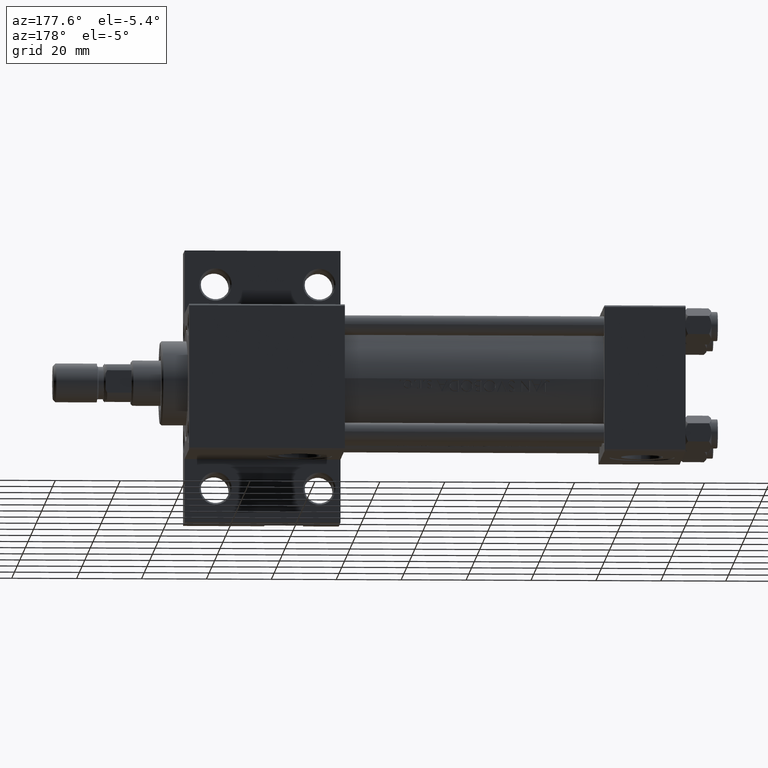
[diagram: clean part render]
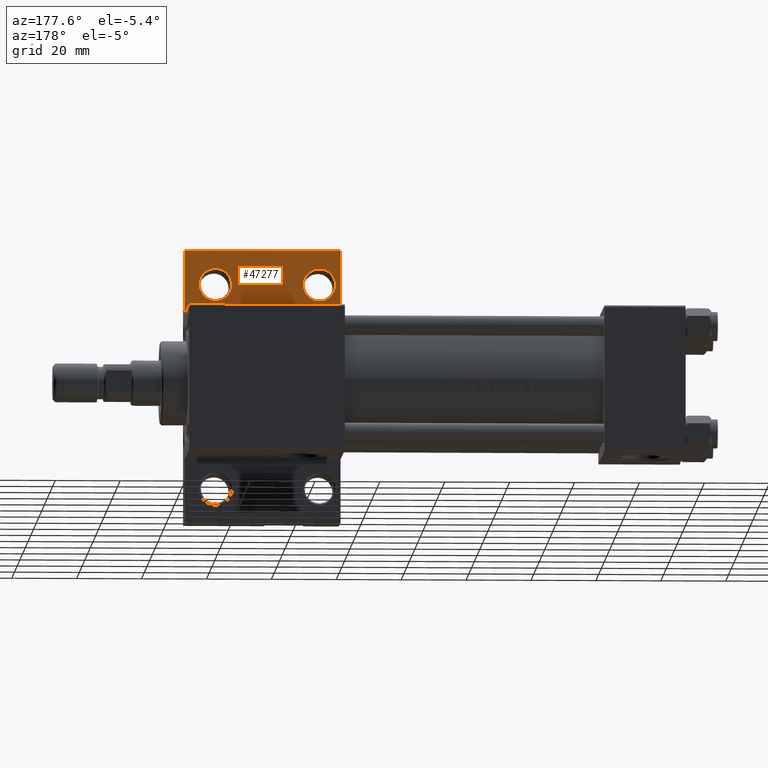
[diagram: same view with one face highlighted and labeled with its STEP entity id]
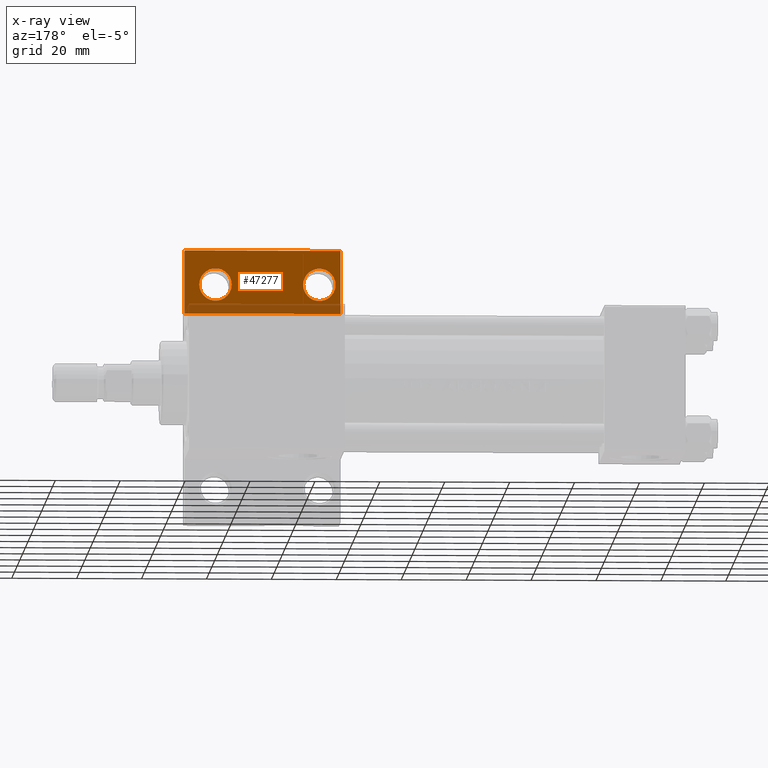
[diagram: x-ray of the same camera — body ghosted, the highlighted face saturated]
A machine part, auxiliary view. The second image highlights one B-rep face of the part: STEP entity #47277.
The next image is the same camera in x-ray: the body ghosted, the highlighted face saturated — about 18% of this face is hidden behind the body in this view.
In plain terms, the highlighted planar face has unit normal (0, -1, 0).
Its self-contained STEP definition (entity closure, byte-faithful):
#296 = CARTESIAN_POINT ( 'NONE',  ( 105.0000000000000000, -42.00000000000000711, -9.999999999999998224 ) ) ;
#1025 = DIRECTION ( 'NONE',  ( 0.000000000000000000, 0.000000000000000000, -1.000000000000000000 ) ) ;
#1309 = EDGE_CURVE ( 'NONE', #24302, #21010, #2443, .T. ) ;
#1635 = EDGE_LOOP ( 'NONE', ( #8759, #8539 ) ) ;
#1659 = AXIS2_PLACEMENT_3D ( 'NONE', #31442, #5617, #12919 ) ;
#2443 = CIRCLE ( 'NONE', #43673, 4.999500000000100641 ) ;
#2996 = EDGE_CURVE ( 'NONE', #17941, #15058, #9762, .T. ) ;
#3899 = CARTESIAN_POINT ( 'NONE',  ( 111.5000000000000142, -31.50000000000000000, -9.999999999999998224 ) ) ;
#3939 = DIRECTION ( 'NONE',  ( 1.000000000000000000, -1.445602896647340396E-16, 0.000000000000000000 ) ) ;
#4228 = DIRECTION ( 'NONE',  ( -1.000000000000000000, 0.000000000000000000, 0.000000000000000000 ) ) ;
#4374 = DIRECTION ( 'NONE',  ( -1.000000000000000000, 0.000000000000000000, 0.000000000000000000 ) ) ;
#5101 = ORIENTED_EDGE ( 'NONE', *, *, #2996, .T. ) ;
#5617 = DIRECTION ( 'NONE',  ( 0.000000000000000000, 0.000000000000000000, -1.000000000000000000 ) ) ;
#6712 = CARTESIAN_POINT ( 'NONE',  ( 105.0000000000000142, -22.50000000000000000, -9.999999999999998224 ) ) ;
#7805 = DIRECTION ( 'NONE',  ( 0.000000000000000000, 0.000000000000000000, -1.000000000000000000 ) ) ;
#7853 = CARTESIAN_POINT ( 'NONE',  ( 143.5000000000000284, -31.50000000000000000, -9.999999999999998224 ) ) ;
#8304 = AXIS2_PLACEMENT_3D ( 'NONE', #14642, #24884, #10735 ) ;
#8539 = ORIENTED_EDGE ( 'NONE', *, *, #33245, .T. ) ;
#8759 = ORIENTED_EDGE ( 'NONE', *, *, #1309, .T. ) ;
#9762 = CIRCLE ( 'NONE', #8304, 4.999500000000045574 ) ;
#10169 = VECTOR ( 'NONE', #21987, 1000.000000000000000 ) ;
#10735 = DIRECTION ( 'NONE',  ( -1.000000000000000000, 0.000000000000000000, 0.000000000000000000 ) ) ;
#12306 = VECTOR ( 'NONE', #15157, 1000.000000000000000 ) ;
#12833 = CARTESIAN_POINT ( 'NONE',  ( 105.0000000000000000, -42.00000000000000711, -9.999999999999998224 ) ) ;
#12919 = DIRECTION ( 'NONE',  ( -1.000000000000000000, 0.000000000000000000, -0.000000000000000000 ) ) ;
#13099 = LINE ( 'NONE', #296, #12306 ) ;
#13403 = VECTOR ( 'NONE', #3939, 1000.000000000000000 ) ;
#13455 = ORIENTED_EDGE ( 'NONE', *, *, #24079, .F. ) ;
#14642 = CARTESIAN_POINT ( 'NONE',  ( 143.5000000000000284, -31.50000000000000000, -9.999999999999998224 ) ) ;
#15058 = VERTEX_POINT ( 'NONE', #47141 ) ;
#15157 = DIRECTION ( 'NONE',  ( -1.000000000000000000, -0.000000000000000000, -0.000000000000000000 ) ) ;
#15561 = AXIS2_PLACEMENT_3D ( 'NONE', #7853, #1025, #15887 ) ;
#15887 = DIRECTION ( 'NONE',  ( -1.000000000000000000, 0.000000000000000000, 0.000000000000000000 ) ) ;
#16388 = CARTESIAN_POINT ( 'NONE',  ( 111.5000000000000142, -31.50000000000000000, -9.999999999999998224 ) ) ;
#16584 = FACE_BOUND ( 'NONE', #31660, .T. ) ;
#17092 = ORIENTED_EDGE ( 'NONE', *, *, #39612, .F. ) ;
#17941 = VERTEX_POINT ( 'NONE', #26327 ) ;
#18828 = VERTEX_POINT ( 'NONE', #19801 ) ;
#19800 = DIRECTION ( 'NONE',  ( 0.000000000000000000, 0.000000000000000000, -1.000000000000000000 ) ) ;
#19801 = CARTESIAN_POINT ( 'NONE',  ( 105.0000000000000000, -42.00000000000000711, -9.999999999999998224 ) ) ;
#19936 = EDGE_CURVE ( 'NONE', #40709, #43490, #39526, .T. ) ;
#21010 = VERTEX_POINT ( 'NONE', #41427 ) ;
#21529 = CIRCLE ( 'NONE', #47999, 4.999500000000100641 ) ;
#21987 = DIRECTION ( 'NONE',  ( -0.000000000000000000, -1.000000000000000000, -0.000000000000000000 ) ) ;
#22361 = ORIENTED_EDGE ( 'NONE', *, *, #19936, .F. ) ;
#22910 = EDGE_CURVE ( 'NONE', #26997, #40709, #29270, .T. ) ;
#23246 = CARTESIAN_POINT ( 'NONE',  ( 152.9999999999999716, -42.00000000000000711, -9.999999999999998224 ) ) ;
#23993 = CARTESIAN_POINT ( 'NONE',  ( 116.4995000000001113, -31.50000000000000000, -9.999999999999998224 ) ) ;
#24079 = EDGE_CURVE ( 'NONE', #18828, #26997, #46210, .T. ) ;
#24302 = VERTEX_POINT ( 'NONE', #23993 ) ;
#24389 = PLANE ( 'NONE',  #1659 ) ;
#24884 = DIRECTION ( 'NONE',  ( 0.000000000000000000, 0.000000000000000000, -1.000000000000000000 ) ) ;
#25287 = ORIENTED_EDGE ( 'NONE', *, *, #22910, .F. ) ;
#25669 = CIRCLE ( 'NONE', #15561, 4.999500000000045574 ) ;
#26327 = CARTESIAN_POINT ( 'NONE',  ( 148.4995000000000687, -31.50000000000000000, -9.999999999999998224 ) ) ;
#26997 = VERTEX_POINT ( 'NONE', #6712 ) ;
#27686 = DIRECTION ( 'NONE',  ( 7.116814260417666541E-16, 1.000000000000000000, 0.000000000000000000 ) ) ;
#29270 = LINE ( 'NONE', #44132, #13403 ) ;
#29794 = EDGE_LOOP ( 'NONE', ( #22361, #25287, #13455, #17092 ) ) ;
#31442 = CARTESIAN_POINT ( 'NONE',  ( 0.000000000000000000, 0.000000000000000000, -9.999999999999998224 ) ) ;
#31660 = EDGE_LOOP ( 'NONE', ( #5101, #47302 ) ) ;
#33245 = EDGE_CURVE ( 'NONE', #21010, #24302, #21529, .T. ) ;
#33513 = CARTESIAN_POINT ( 'NONE',  ( 153.0000000000000284, -22.49999999999999645, -9.999999999999980460 ) ) ;
#38993 = FACE_OUTER_BOUND ( 'NONE', #29794, .T. ) ;
#39526 = LINE ( 'NONE', #43655, #10169 ) ;
#39612 = EDGE_CURVE ( 'NONE', #43490, #18828, #13099, .T. ) ;
#40666 = VECTOR ( 'NONE', #27686, 1000.000000000000000 ) ;
#40709 = VERTEX_POINT ( 'NONE', #33513 ) ;
#41427 = CARTESIAN_POINT ( 'NONE',  ( 106.5004999999999171, -31.50000000000000000, -9.999999999999998224 ) ) ;
#43490 = VERTEX_POINT ( 'NONE', #23246 ) ;
#43655 = CARTESIAN_POINT ( 'NONE',  ( 152.9999999999999716, -42.00000000000000711, -9.999999999999998224 ) ) ;
#43673 = AXIS2_PLACEMENT_3D ( 'NONE', #3899, #7805, #4374 ) ;
#43752 = EDGE_CURVE ( 'NONE', #15058, #17941, #25669, .T. ) ;
#44132 = CARTESIAN_POINT ( 'NONE',  ( 105.0000000000000142, -22.50000000000000000, -9.999999999999998224 ) ) ;
#45173 = FACE_BOUND ( 'NONE', #1635, .T. ) ;
#46210 = LINE ( 'NONE', #12833, #40666 ) ;
#47141 = CARTESIAN_POINT ( 'NONE',  ( 138.5004999999999598, -31.50000000000000000, -9.999999999999998224 ) ) ;
#47277 = ADVANCED_FACE ( 'NONE', ( #16584, #45173, #38993 ), #24389, .F. ) ;
#47302 = ORIENTED_EDGE ( 'NONE', *, *, #43752, .T. ) ;
#47999 = AXIS2_PLACEMENT_3D ( 'NONE', #16388, #19800, #4228 ) ;